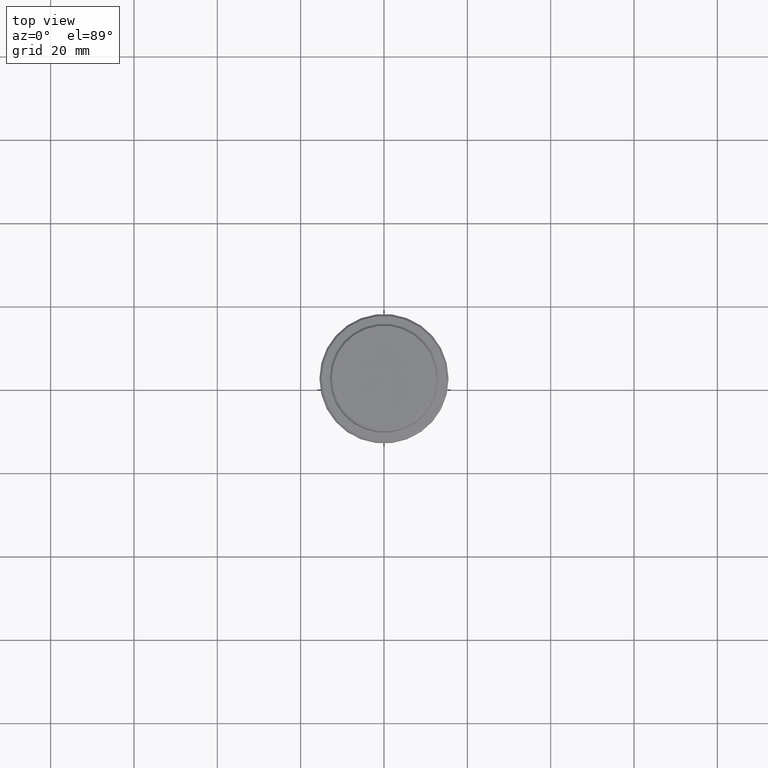
[diagram: clean part render]
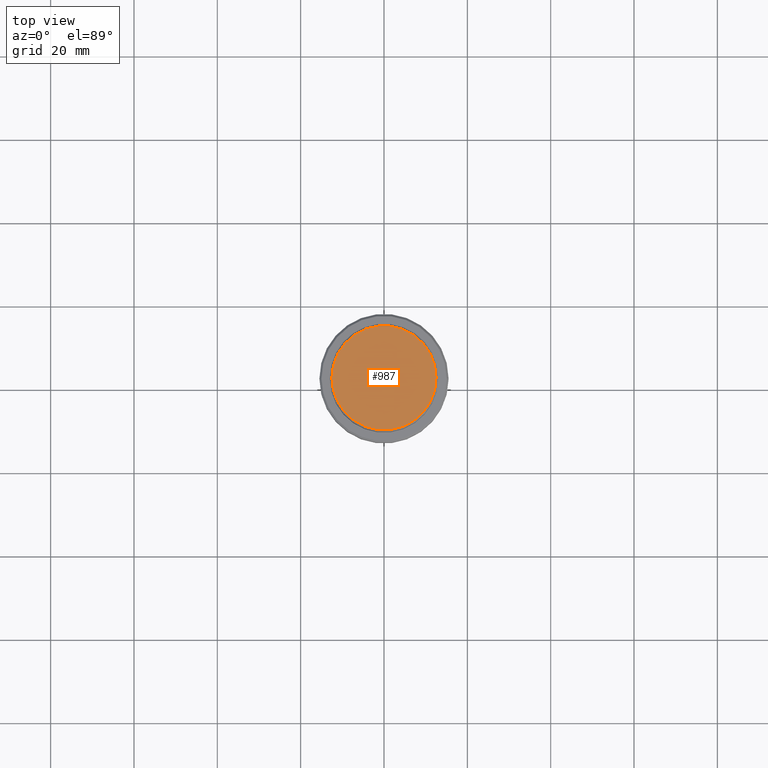
[diagram: same view with one face highlighted and labeled with its STEP entity id]
A machine part, top view. The second image highlights one B-rep face of the part: STEP entity #987.
In plain terms, the highlighted planar face has unit normal (0, -0, 1).
Its self-contained STEP definition (entity closure, byte-faithful):
#81 = AXIS2_PLACEMENT_3D ( 'NONE', #639, #1225, #1331 ) ;
#187 = FACE_OUTER_BOUND ( 'NONE', #1346, .T. ) ;
#197 = CIRCLE ( 'NONE', #474, 12.50000000000001243 ) ;
#202 = EDGE_CURVE ( 'NONE', #686, #1036, #218, .T. ) ;
#218 = CIRCLE ( 'NONE', #81, 12.50000000000001243 ) ;
#336 = CARTESIAN_POINT ( 'NONE',  ( 12.50000000000001243, 1.561424668912876097E-15, 0.000000000000000000 ) ) ;
#414 = CARTESIAN_POINT ( 'NONE',  ( 0.000000000000000000, 0.000000000000000000, 0.000000000000000000 ) ) ;
#474 = AXIS2_PLACEMENT_3D ( 'NONE', #1041, #951, #1068 ) ;
#522 = PLANE ( 'NONE',  #1241 ) ;
#623 = DIRECTION ( 'NONE',  ( 1.000000000000000000, 0.000000000000000000, 0.000000000000000000 ) ) ;
#639 = CARTESIAN_POINT ( 'NONE',  ( 0.000000000000000000, 0.000000000000000000, 0.000000000000000000 ) ) ;
#686 = VERTEX_POINT ( 'NONE', #1086 ) ;
#693 = ORIENTED_EDGE ( 'NONE', *, *, #202, .T. ) ;
#856 = ORIENTED_EDGE ( 'NONE', *, *, #1356, .T. ) ;
#951 = DIRECTION ( 'NONE',  ( -0.000000000000000000, -0.000000000000000000, 1.000000000000000000 ) ) ;
#987 = ADVANCED_FACE ( 'NONE', ( #187 ), #522, .T. ) ;
#1036 = VERTEX_POINT ( 'NONE', #336 ) ;
#1041 = CARTESIAN_POINT ( 'NONE',  ( 0.000000000000000000, 0.000000000000000000, 0.000000000000000000 ) ) ;
#1068 = DIRECTION ( 'NONE',  ( 1.000000000000000000, 0.000000000000000000, 0.000000000000000000 ) ) ;
#1086 = CARTESIAN_POINT ( 'NONE',  ( -12.50000000000001243, 0.000000000000000000, 0.000000000000000000 ) ) ;
#1225 = DIRECTION ( 'NONE',  ( -0.000000000000000000, -0.000000000000000000, 1.000000000000000000 ) ) ;
#1241 = AXIS2_PLACEMENT_3D ( 'NONE', #414, #1273, #623 ) ;
#1273 = DIRECTION ( 'NONE',  ( 0.000000000000000000, -0.000000000000000000, 1.000000000000000000 ) ) ;
#1331 = DIRECTION ( 'NONE',  ( 1.000000000000000000, 0.000000000000000000, 0.000000000000000000 ) ) ;
#1346 = EDGE_LOOP ( 'NONE', ( #693, #856 ) ) ;
#1356 = EDGE_CURVE ( 'NONE', #1036, #686, #197, .T. ) ;